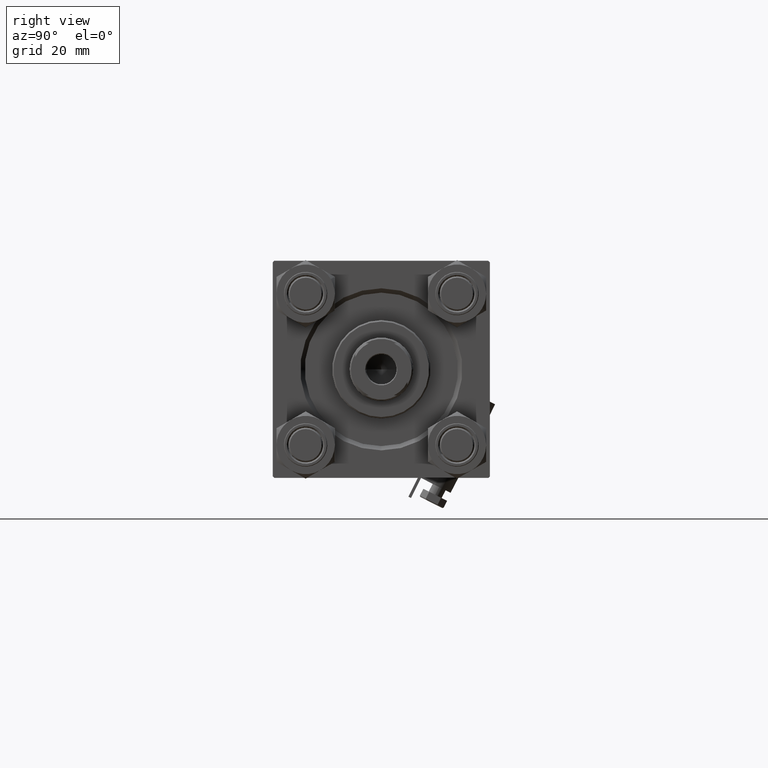
[diagram: clean part render]
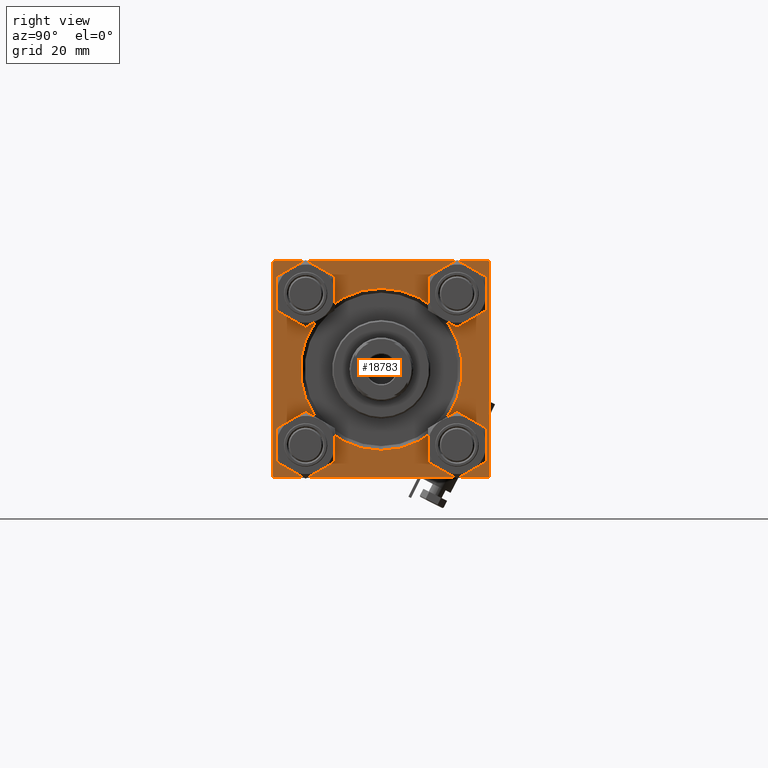
[diagram: same view with one face highlighted and labeled with its STEP entity id]
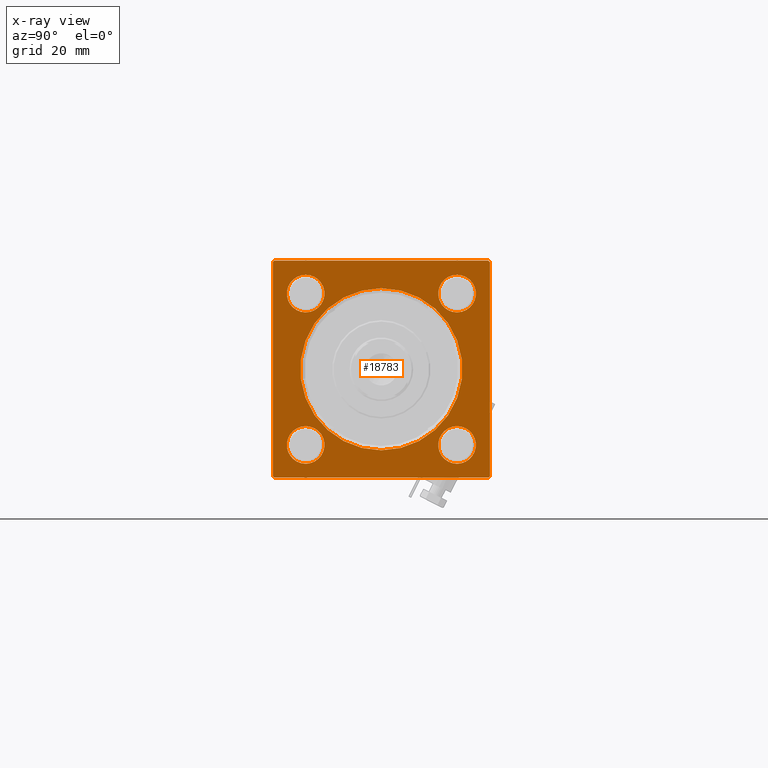
[diagram: x-ray of the same camera — body ghosted, the highlighted face saturated]
A machine part, right view. The second image highlights one B-rep face of the part: STEP entity #18783.
The next image is the same camera in x-ray: the body ghosted, the highlighted face saturated — about 0% of this face is hidden behind the body in this view.
In plain terms, the highlighted planar face has unit normal (-1, 0, 0).
Its self-contained STEP definition (entity closure, byte-faithful):
#52 = AXIS2_PLACEMENT_3D ( 'NONE', #6377, #37685, #42276 ) ;
#200 = DIRECTION ( 'NONE',  ( 0.000000000000000000, 0.000000000000000000, 1.000000000000000000 ) ) ;
#443 = DIRECTION ( 'NONE',  ( -1.000000000000000000, -0.000000000000000000, 0.000000000000000000 ) ) ;
#885 = DIRECTION ( 'NONE',  ( -1.000000000000000000, -0.000000000000000000, 0.000000000000000000 ) ) ;
#1826 = AXIS2_PLACEMENT_3D ( 'NONE', #48460, #21734, #5849 ) ;
#2045 = ORIENTED_EDGE ( 'NONE', *, *, #39664, .T. ) ;
#2066 = VECTOR ( 'NONE', #34272, 1000.000000000000114 ) ;
#2116 = EDGE_LOOP ( 'NONE', ( #12635, #2045 ) ) ;
#2462 = CARTESIAN_POINT ( 'NONE',  ( 154.0000000000000000, -37.50000000000000000, 36.99999999999995026 ) ) ;
#2555 = CARTESIAN_POINT ( 'NONE',  ( 154.0000000000000000, 26.14999999999999858, -32.65000000000000568 ) ) ;
#2681 = CARTESIAN_POINT ( 'NONE',  ( 154.0000000000000000, 37.50000000000000000, -36.99999999999999289 ) ) ;
#2831 = DIRECTION ( 'NONE',  ( -1.000000000000000000, -0.000000000000000000, 0.000000000000000000 ) ) ;
#3312 = ORIENTED_EDGE ( 'NONE', *, *, #32013, .T. ) ;
#4142 = LINE ( 'NONE', #34945, #40030 ) ;
#4159 = EDGE_CURVE ( 'NONE', #7074, #33101, #50367, .T. ) ;
#4983 = VERTEX_POINT ( 'NONE', #42470 ) ;
#5022 = EDGE_CURVE ( 'NONE', #30854, #42686, #23345, .T. ) ;
#5231 = CARTESIAN_POINT ( 'NONE',  ( 154.0000000000000000, 26.14999999999999858, 32.65000000000001279 ) ) ;
#5593 = VECTOR ( 'NONE', #32305, 1000.000000000000114 ) ;
#5849 = DIRECTION ( 'NONE',  ( 0.000000000000000000, 0.000000000000000000, 1.000000000000000000 ) ) ;
#6377 = CARTESIAN_POINT ( 'NONE',  ( 154.0000000000000000, 26.14999999999999858, -26.15000000000000213 ) ) ;
#6546 = DIRECTION ( 'NONE',  ( 0.000000000000000000, 0.000000000000000000, 1.000000000000000000 ) ) ;
#7074 = VERTEX_POINT ( 'NONE', #46913 ) ;
#7640 = CIRCLE ( 'NONE', #39621, 6.500000000000037303 ) ;
#8009 = DIRECTION ( 'NONE',  ( 0.000000000000000000, -1.000000000000000000, -1.850371707708594316E-16 ) ) ;
#8466 = LINE ( 'NONE', #28741, #48819 ) ;
#8579 = CARTESIAN_POINT ( 'NONE',  ( 154.0000000000000000, -37.50000000000000000, 36.99999999999995026 ) ) ;
#8606 = DIRECTION ( 'NONE',  ( 0.000000000000000000, 0.000000000000000000, 1.000000000000000000 ) ) ;
#10149 = CARTESIAN_POINT ( 'NONE',  ( 154.0000000000000000, -26.14999999999999147, -26.15000000000000924 ) ) ;
#10327 = ORIENTED_EDGE ( 'NONE', *, *, #21595, .T. ) ;
#10715 = ORIENTED_EDGE ( 'NONE', *, *, #16209, .T. ) ;
#11368 = CARTESIAN_POINT ( 'NONE',  ( 154.0000000000000000, -26.14999999999999147, -19.65000000000000924 ) ) ;
#11826 = LINE ( 'NONE', #27476, #33359 ) ;
#11899 = ORIENTED_EDGE ( 'NONE', *, *, #41470, .T. ) ;
#11927 = DIRECTION ( 'NONE',  ( 0.000000000000000000, 0.000000000000000000, 1.000000000000000000 ) ) ;
#12283 = ORIENTED_EDGE ( 'NONE', *, *, #49118, .T. ) ;
#12323 = AXIS2_PLACEMENT_3D ( 'NONE', #49811, #2831, #14646 ) ;
#12529 = CARTESIAN_POINT ( 'NONE',  ( 154.0000000000000000, -26.14999999999999147, -32.65000000000001279 ) ) ;
#12586 = EDGE_LOOP ( 'NONE', ( #15980, #17054 ) ) ;
#12635 = ORIENTED_EDGE ( 'NONE', *, *, #5022, .T. ) ;
#12950 = CIRCLE ( 'NONE', #13762, 6.500000000000002665 ) ;
#13685 = VERTEX_POINT ( 'NONE', #34777 ) ;
#13709 = EDGE_CURVE ( 'NONE', #50356, #4983, #17896, .T. ) ;
#13724 = ORIENTED_EDGE ( 'NONE', *, *, #46360, .F. ) ;
#13762 = AXIS2_PLACEMENT_3D ( 'NONE', #10149, #25290, #6546 ) ;
#14227 = CARTESIAN_POINT ( 'NONE',  ( 154.0000000000000000, 26.14999999999999858, 19.64999999999999858 ) ) ;
#14507 = LINE ( 'NONE', #46063, #27717 ) ;
#14646 = DIRECTION ( 'NONE',  ( 0.000000000000000000, 0.000000000000000000, 1.000000000000000000 ) ) ;
#15980 = ORIENTED_EDGE ( 'NONE', *, *, #32264, .T. ) ;
#16209 = EDGE_CURVE ( 'NONE', #43423, #31858, #4142, .T. ) ;
#16530 = DIRECTION ( 'NONE',  ( 0.000000000000000000, 0.000000000000000000, 1.000000000000000000 ) ) ;
#16555 = EDGE_CURVE ( 'NONE', #22463, #39662, #14507, .T. ) ;
#16819 = VERTEX_POINT ( 'NONE', #8579 ) ;
#16877 = VERTEX_POINT ( 'NONE', #5231 ) ;
#17054 = ORIENTED_EDGE ( 'NONE', *, *, #13709, .T. ) ;
#17713 = CARTESIAN_POINT ( 'NONE',  ( 154.0000000000000000, 37.00000000000000000, 37.49999999999999289 ) ) ;
#17896 = CIRCLE ( 'NONE', #25265, 27.99999999999999645 ) ;
#17924 = DIRECTION ( 'NONE',  ( -1.000000000000000000, -0.000000000000000000, 0.000000000000000000 ) ) ;
#18344 = LINE ( 'NONE', #2462, #2066 ) ;
#18386 = VERTEX_POINT ( 'NONE', #25441 ) ;
#18428 = AXIS2_PLACEMENT_3D ( 'NONE', #28091, #44762, #16530 ) ;
#18760 = AXIS2_PLACEMENT_3D ( 'NONE', #42285, #17924, #33843 ) ;
#18783 = ADVANCED_FACE ( 'NONE', ( #22524, #34090, #21773, #30003, #46140, #26139 ), #45387, .F. ) ;
#19372 = DIRECTION ( 'NONE',  ( -1.000000000000000000, -0.000000000000000000, 0.000000000000000000 ) ) ;
#19448 = CARTESIAN_POINT ( 'NONE',  ( 154.0000000000000000, -26.14999999999999147, 32.65000000000004832 ) ) ;
#20469 = CARTESIAN_POINT ( 'NONE',  ( 154.0000000000000000, 3.429011037612588881E-15, 27.99999999999999645 ) ) ;
#21419 = VERTEX_POINT ( 'NONE', #2555 ) ;
#21595 = EDGE_CURVE ( 'NONE', #21419, #45733, #37067, .T. ) ;
#21734 = DIRECTION ( 'NONE',  ( -1.000000000000000000, -0.000000000000000000, 0.000000000000000000 ) ) ;
#21773 = FACE_BOUND ( 'NONE', #41640, .T. ) ;
#22312 = VERTEX_POINT ( 'NONE', #28455 ) ;
#22463 = VERTEX_POINT ( 'NONE', #38413 ) ;
#22524 = FACE_BOUND ( 'NONE', #2116, .T. ) ;
#22966 = VECTOR ( 'NONE', #43902, 1000.000000000000000 ) ;
#23311 = AXIS2_PLACEMENT_3D ( 'NONE', #36048, #885, #43730 ) ;
#23345 = CIRCLE ( 'NONE', #24193, 6.500000000000002665 ) ;
#23741 = DIRECTION ( 'NONE',  ( -1.000000000000000000, -0.000000000000000000, 0.000000000000000000 ) ) ;
#23966 = CARTESIAN_POINT ( 'NONE',  ( 154.0000000000000000, -26.14999999999999147, -26.15000000000000924 ) ) ;
#24018 = EDGE_LOOP ( 'NONE', ( #33451, #11899, #13724, #50494, #37788, #43140, #10715, #3312 ) ) ;
#24098 = DIRECTION ( 'NONE',  ( 0.000000000000000000, 0.000000000000000000, -1.000000000000000000 ) ) ;
#24193 = AXIS2_PLACEMENT_3D ( 'NONE', #23966, #27071, #11927 ) ;
#24622 = EDGE_CURVE ( 'NONE', #33101, #7074, #7640, .T. ) ;
#25241 = ORIENTED_EDGE ( 'NONE', *, *, #48558, .T. ) ;
#25265 = AXIS2_PLACEMENT_3D ( 'NONE', #35809, #23741, #8606 ) ;
#25290 = DIRECTION ( 'NONE',  ( -1.000000000000000000, -0.000000000000000000, 0.000000000000000000 ) ) ;
#25435 = AXIS2_PLACEMENT_3D ( 'NONE', #50779, #443, #200 ) ;
#25441 = CARTESIAN_POINT ( 'NONE',  ( 154.0000000000000000, 37.50000000000000000, 36.99999999999999289 ) ) ;
#26139 = FACE_OUTER_BOUND ( 'NONE', #24018, .T. ) ;
#26202 = CIRCLE ( 'NONE', #52, 6.500000000000002665 ) ;
#26589 = VERTEX_POINT ( 'NONE', #14227 ) ;
#27071 = DIRECTION ( 'NONE',  ( -1.000000000000000000, -0.000000000000000000, 0.000000000000000000 ) ) ;
#27476 = CARTESIAN_POINT ( 'NONE',  ( 154.0000000000000000, -37.50000000000000000, 37.49999999999997868 ) ) ;
#27717 = VECTOR ( 'NONE', #30668, 999.9999999999998863 ) ;
#27753 = VECTOR ( 'NONE', #43668, 1000.000000000000000 ) ;
#28091 = CARTESIAN_POINT ( 'NONE',  ( 154.0000000000000000, 0.000000000000000000, 0.000000000000000000 ) ) ;
#28455 = CARTESIAN_POINT ( 'NONE',  ( 154.0000000000000000, -36.99999999999998579, -37.50000000000000000 ) ) ;
#28741 = CARTESIAN_POINT ( 'NONE',  ( 154.0000000000000000, 37.50000000000000000, 37.49999999999999289 ) ) ;
#30003 = FACE_BOUND ( 'NONE', #49713, .T. ) ;
#30668 = DIRECTION ( 'NONE',  ( -0.000000000000000000, 0.7071067811865425767, 0.7071067811865525687 ) ) ;
#30678 = DIRECTION ( 'NONE',  ( 0.000000000000000000, 0.000000000000000000, 1.000000000000000000 ) ) ;
#30854 = VERTEX_POINT ( 'NONE', #12529 ) ;
#31398 = ORIENTED_EDGE ( 'NONE', *, *, #49516, .T. ) ;
#31858 = VERTEX_POINT ( 'NONE', #35348 ) ;
#32013 = EDGE_CURVE ( 'NONE', #31858, #16819, #18344, .T. ) ;
#32180 = EDGE_LOOP ( 'NONE', ( #10327, #25241 ) ) ;
#32264 = EDGE_CURVE ( 'NONE', #4983, #50356, #47250, .T. ) ;
#32305 = DIRECTION ( 'NONE',  ( 0.000000000000000000, -0.7071067811865474617, 0.7071067811865474617 ) ) ;
#32900 = EDGE_CURVE ( 'NONE', #18386, #39662, #8466, .T. ) ;
#33101 = VERTEX_POINT ( 'NONE', #19448 ) ;
#33359 = VECTOR ( 'NONE', #47759, 1000.000000000000000 ) ;
#33451 = ORIENTED_EDGE ( 'NONE', *, *, #36667, .T. ) ;
#33843 = DIRECTION ( 'NONE',  ( 0.000000000000000000, 0.000000000000000000, 1.000000000000000000 ) ) ;
#34090 = FACE_BOUND ( 'NONE', #32180, .T. ) ;
#34272 = DIRECTION ( 'NONE',  ( -0.000000000000000000, -0.7071067811865474617, -0.7071067811865474617 ) ) ;
#34777 = CARTESIAN_POINT ( 'NONE',  ( 154.0000000000000000, -37.50000000000000711, -37.00000000000000711 ) ) ;
#34945 = CARTESIAN_POINT ( 'NONE',  ( 154.0000000000000000, 37.50000000000000000, 37.49999999999999289 ) ) ;
#35190 = CARTESIAN_POINT ( 'NONE',  ( 154.0000000000000000, 37.50000000000000000, -37.50000000000000000 ) ) ;
#35289 = CARTESIAN_POINT ( 'NONE',  ( 154.0000000000000000, -26.14999999999999147, 26.15000000000000924 ) ) ;
#35348 = CARTESIAN_POINT ( 'NONE',  ( 154.0000000000000000, -36.99999999999997158, 37.49999999999997868 ) ) ;
#35719 = LINE ( 'NONE', #36233, #27753 ) ;
#35809 = CARTESIAN_POINT ( 'NONE',  ( 154.0000000000000000, 0.000000000000000000, 0.000000000000000000 ) ) ;
#36048 = CARTESIAN_POINT ( 'NONE',  ( 154.0000000000000000, -26.14999999999999147, 26.15000000000000924 ) ) ;
#36159 = CARTESIAN_POINT ( 'NONE',  ( 154.0000000000000000, 37.00000000000000000, 37.49999999999999289 ) ) ;
#36233 = CARTESIAN_POINT ( 'NONE',  ( 154.0000000000000000, -36.99999999999998579, -37.50000000000000000 ) ) ;
#36667 = EDGE_CURVE ( 'NONE', #16819, #13685, #11826, .T. ) ;
#37067 = CIRCLE ( 'NONE', #1826, 6.500000000000002665 ) ;
#37685 = DIRECTION ( 'NONE',  ( -1.000000000000000000, -0.000000000000000000, 0.000000000000000000 ) ) ;
#37788 = ORIENTED_EDGE ( 'NONE', *, *, #32900, .F. ) ;
#38413 = CARTESIAN_POINT ( 'NONE',  ( 154.0000000000000000, 37.00000000000000000, -37.50000000000000000 ) ) ;
#38599 = ORIENTED_EDGE ( 'NONE', *, *, #24622, .T. ) ;
#39405 = CARTESIAN_POINT ( 'NONE',  ( 154.0000000000000000, 26.14999999999999858, -19.65000000000000213 ) ) ;
#39432 = ORIENTED_EDGE ( 'NONE', *, *, #4159, .T. ) ;
#39621 = AXIS2_PLACEMENT_3D ( 'NONE', #35289, #19372, #30678 ) ;
#39662 = VERTEX_POINT ( 'NONE', #2681 ) ;
#39664 = EDGE_CURVE ( 'NONE', #42686, #30854, #12950, .T. ) ;
#40030 = VECTOR ( 'NONE', #8009, 1000.000000000000000 ) ;
#40199 = EDGE_CURVE ( 'NONE', #18386, #43423, #45064, .T. ) ;
#41470 = EDGE_CURVE ( 'NONE', #13685, #22312, #35719, .T. ) ;
#41640 = EDGE_LOOP ( 'NONE', ( #12283, #31398 ) ) ;
#42276 = DIRECTION ( 'NONE',  ( 0.000000000000000000, 0.000000000000000000, 1.000000000000000000 ) ) ;
#42285 = CARTESIAN_POINT ( 'NONE',  ( 154.0000000000000000, 0.000000000000000000, 0.000000000000000000 ) ) ;
#42470 = CARTESIAN_POINT ( 'NONE',  ( 154.0000000000000000, 0.000000000000000000, -27.99999999999999645 ) ) ;
#42686 = VERTEX_POINT ( 'NONE', #11368 ) ;
#43140 = ORIENTED_EDGE ( 'NONE', *, *, #40199, .T. ) ;
#43423 = VERTEX_POINT ( 'NONE', #17713 ) ;
#43668 = DIRECTION ( 'NONE',  ( 0.000000000000000000, 0.7071067811865671127, -0.7071067811865279218 ) ) ;
#43730 = DIRECTION ( 'NONE',  ( 0.000000000000000000, 0.000000000000000000, 1.000000000000000000 ) ) ;
#43902 = DIRECTION ( 'NONE',  ( 0.000000000000000000, -1.000000000000000000, 0.000000000000000000 ) ) ;
#44313 = CIRCLE ( 'NONE', #25435, 6.500000000000002665 ) ;
#44762 = DIRECTION ( 'NONE',  ( -1.000000000000000000, -0.000000000000000000, 0.000000000000000000 ) ) ;
#45064 = LINE ( 'NONE', #36159, #5593 ) ;
#45387 = PLANE ( 'NONE',  #18760 ) ;
#45733 = VERTEX_POINT ( 'NONE', #39405 ) ;
#46063 = CARTESIAN_POINT ( 'NONE',  ( 154.0000000000000000, 37.50000000000000000, -36.99999999999999289 ) ) ;
#46140 = FACE_BOUND ( 'NONE', #12586, .T. ) ;
#46360 = EDGE_CURVE ( 'NONE', #22463, #22312, #48015, .T. ) ;
#46913 = CARTESIAN_POINT ( 'NONE',  ( 154.0000000000000000, -26.14999999999999147, 19.64999999999997726 ) ) ;
#47250 = CIRCLE ( 'NONE', #18428, 27.99999999999999645 ) ;
#47759 = DIRECTION ( 'NONE',  ( 0.000000000000000000, -9.251858538542972814E-17, -1.000000000000000000 ) ) ;
#48015 = LINE ( 'NONE', #35190, #22966 ) ;
#48384 = CIRCLE ( 'NONE', #12323, 6.500000000000002665 ) ;
#48460 = CARTESIAN_POINT ( 'NONE',  ( 154.0000000000000000, 26.14999999999999858, -26.15000000000000213 ) ) ;
#48558 = EDGE_CURVE ( 'NONE', #45733, #21419, #26202, .T. ) ;
#48819 = VECTOR ( 'NONE', #24098, 1000.000000000000000 ) ;
#49118 = EDGE_CURVE ( 'NONE', #26589, #16877, #48384, .T. ) ;
#49516 = EDGE_CURVE ( 'NONE', #16877, #26589, #44313, .T. ) ;
#49713 = EDGE_LOOP ( 'NONE', ( #39432, #38599 ) ) ;
#49811 = CARTESIAN_POINT ( 'NONE',  ( 154.0000000000000000, 26.14999999999999858, 26.15000000000000213 ) ) ;
#50356 = VERTEX_POINT ( 'NONE', #20469 ) ;
#50367 = CIRCLE ( 'NONE', #23311, 6.500000000000037303 ) ;
#50494 = ORIENTED_EDGE ( 'NONE', *, *, #16555, .T. ) ;
#50779 = CARTESIAN_POINT ( 'NONE',  ( 154.0000000000000000, 26.14999999999999858, 26.15000000000000213 ) ) ;